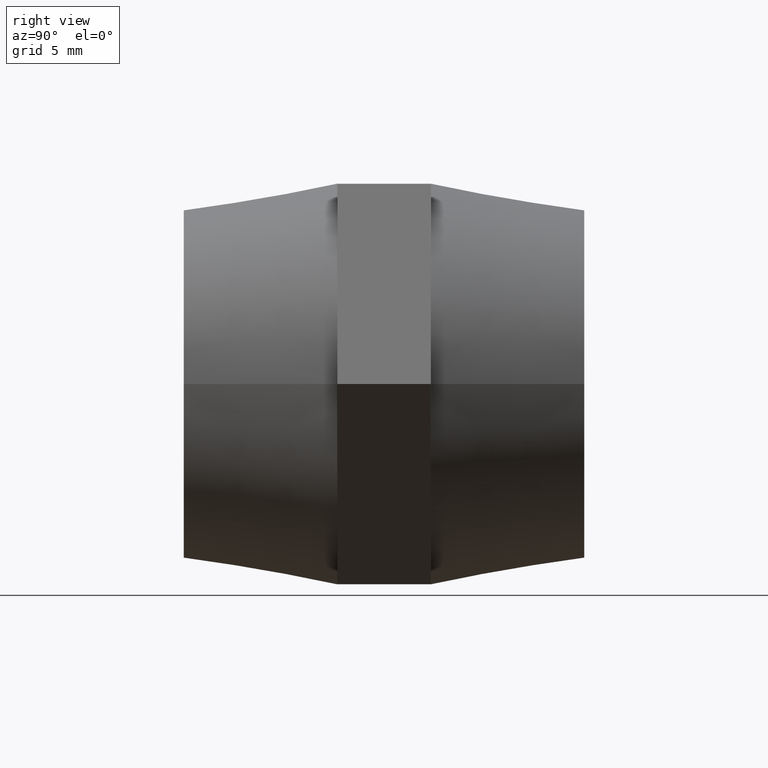
[diagram: clean part render]
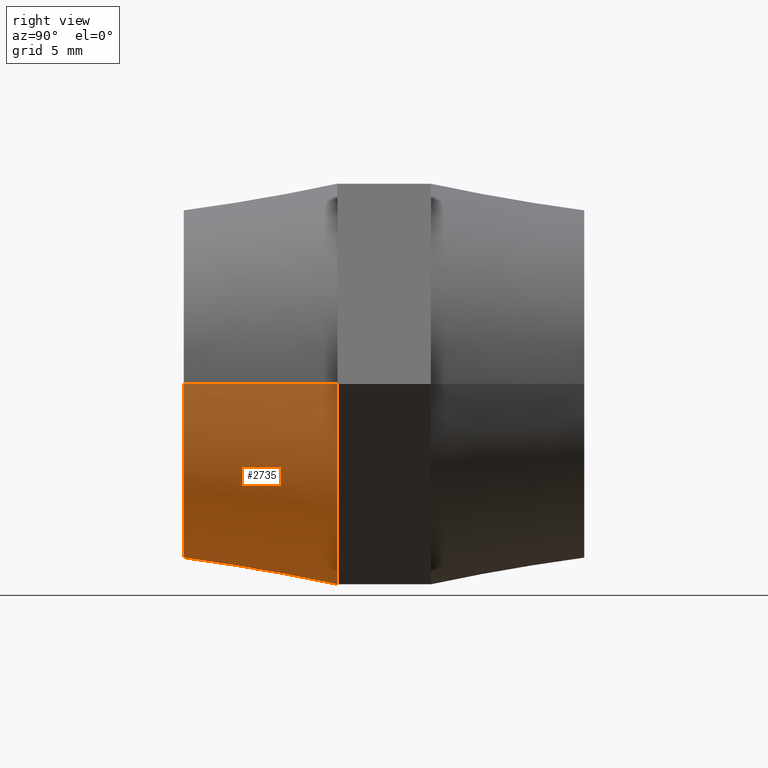
[diagram: same view with one face highlighted and labeled with its STEP entity id]
A machine part, right view. The second image highlights one B-rep face of the part: STEP entity #2735.
In plain terms, the highlighted conical surface has half-angle 9.866 deg.
Its self-contained STEP definition (entity closure, byte-faithful):
#27 = EDGE_CURVE ( 'NONE', #3611, #335, #457, .T. ) ;
#35 = AXIS2_PLACEMENT_3D ( 'NONE', #1617, #2551, #3760 ) ;
#59 = ORIENTED_EDGE ( 'NONE', *, *, #887, .F. ) ;
#103 = VERTEX_POINT ( 'NONE', #2488 ) ;
#136 = ORIENTED_EDGE ( 'NONE', *, *, #1017, .T. ) ;
#239 = CONICAL_SURFACE ( 'NONE', #2372, 15.00000000000000000, 0.1721908145229393800 ) ;
#335 = VERTEX_POINT ( 'NONE', #3043 ) ;
#457 = LINE ( 'NONE', #2420, #2533 ) ;
#572 = CARTESIAN_POINT ( 'NONE',  ( 12.99038105676658000, -3.500000000000000000, -7.500000000000000000 ) ) ;
#658 = DIRECTION ( 'NONE',  ( 0.0000000000000000000, 1.000000000000000000, 0.0000000000000000000 ) ) ;
#693 = CARTESIAN_POINT ( 'NONE',  ( 3.673940397442060000E-015, -15.00000000000000000, 0.0000000000000000000 ) ) ;
#720 = ORIENTED_EDGE ( 'NONE', *, *, #3523, .F. ) ;
#721 = VECTOR ( 'NONE', #2000, 1000.000000000000100 ) ;
#770 = CIRCLE ( 'NONE', #1713, 13.00000000000000000 ) ;
#784 = CARTESIAN_POINT ( 'NONE',  ( -14.99999999999999800, -3.500000000000001800, 0.0000000000000000000 ) ) ;
#833 = ORIENTED_EDGE ( 'NONE', *, *, #1848, .F. ) ;
#874 = DIRECTION ( 'NONE',  ( 0.0000000000000000000, 0.0000000000000000000, 1.000000000000000000 ) ) ;
#887 = EDGE_CURVE ( 'NONE', #335, #3306, #3234, .T. ) ;
#896 = CARTESIAN_POINT ( 'NONE',  ( -12.99999999999999600, -15.00000000000000200, 0.0000000000000000000 ) ) ;
#996 = DIRECTION ( 'NONE',  ( 0.0000000000000000000, 0.0000000000000000000, 1.000000000000000000 ) ) ;
#1001 = AXIS2_PLACEMENT_3D ( 'NONE', #2500, #658, #996 ) ;
#1017 = EDGE_CURVE ( 'NONE', #1861, #1904, #3736, .T. ) ;
#1100 = AXIS2_PLACEMENT_3D ( 'NONE', #3426, #2796, #1323 ) ;
#1121 = ORIENTED_EDGE ( 'NONE', *, *, #1485, .F. ) ;
#1226 = DIRECTION ( 'NONE',  ( 0.1713411747512479400, 0.9852117548196743800, 2.098324212212632000E-017 ) ) ;
#1286 = CIRCLE ( 'NONE', #1100, 15.00000000000000000 ) ;
#1323 = DIRECTION ( 'NONE',  ( 0.0000000000000000000, 0.0000000000000000000, 1.000000000000000000 ) ) ;
#1449 = DIRECTION ( 'NONE',  ( -1.000000000000000000, -1.156482317317871500E-016, 0.0000000000000000000 ) ) ;
#1467 = VERTEX_POINT ( 'NONE', #1557 ) ;
#1470 = EDGE_CURVE ( 'NONE', #3611, #1861, #770, .T. ) ;
#1485 = EDGE_CURVE ( 'NONE', #103, #1904, #1286, .T. ) ;
#1557 = CARTESIAN_POINT ( 'NONE',  ( 2.265596578422605000E-015, -3.500000000000000000, -15.00000000000000000 ) ) ;
#1617 = CARTESIAN_POINT ( 'NONE',  ( 2.265596578422605000E-015, -3.500000000000000000, 3.194730780384400500E-016 ) ) ;
#1713 = AXIS2_PLACEMENT_3D ( 'NONE', #693, #1910, #3155 ) ;
#1837 = FACE_OUTER_BOUND ( 'NONE', #3066, .T. ) ;
#1848 = EDGE_CURVE ( 'NONE', #3306, #1467, #1849, .T. ) ;
#1849 = CIRCLE ( 'NONE', #2115, 15.00000000000000000 ) ;
#1861 = VERTEX_POINT ( 'NONE', #896 ) ;
#1904 = VERTEX_POINT ( 'NONE', #2142 ) ;
#1910 = DIRECTION ( 'NONE',  ( -1.224646799147352000E-016, 1.000000000000000000, 0.0000000000000000000 ) ) ;
#2000 = DIRECTION ( 'NONE',  ( -0.1713411747512481600, 0.9852117548196743800, 0.0000000000000000000 ) ) ;
#2115 = AXIS2_PLACEMENT_3D ( 'NONE', #2422, #2986, #874 ) ;
#2142 = CARTESIAN_POINT ( 'NONE',  ( -14.99999999999999800, -3.500000000000000000, 0.0000000000000000000 ) ) ;
#2172 = ORIENTED_EDGE ( 'NONE', *, *, #1470, .T. ) ;
#2372 = AXIS2_PLACEMENT_3D ( 'NONE', #3833, #2625, #1449 ) ;
#2420 = CARTESIAN_POINT ( 'NONE',  ( 15.00000000000000200, -3.499999999999998200, 1.836970198721029600E-015 ) ) ;
#2422 = CARTESIAN_POINT ( 'NONE',  ( 2.265596578422605000E-015, -3.500000000000000000, 3.194730780384400500E-016 ) ) ;
#2488 = CARTESIAN_POINT ( 'NONE',  ( -12.99038105676658000, -3.500000000000000000, -7.500000000000000000 ) ) ;
#2500 = CARTESIAN_POINT ( 'NONE',  ( 2.265596578422605000E-015, -3.500000000000000000, 3.194730780384400500E-016 ) ) ;
#2533 = VECTOR ( 'NONE', #1226, 1000.000000000000100 ) ;
#2551 = DIRECTION ( 'NONE',  ( 0.0000000000000000000, 1.000000000000000000, 0.0000000000000000000 ) ) ;
#2625 = DIRECTION ( 'NONE',  ( -1.224646799147352000E-016, 1.000000000000000000, 0.0000000000000000000 ) ) ;
#2633 = ORIENTED_EDGE ( 'NONE', *, *, #27, .F. ) ;
#2735 = ADVANCED_FACE ( 'NONE', ( #1837 ), #239, .T. ) ;
#2796 = DIRECTION ( 'NONE',  ( 0.0000000000000000000, 1.000000000000000000, 0.0000000000000000000 ) ) ;
#2986 = DIRECTION ( 'NONE',  ( 0.0000000000000000000, 1.000000000000000000, 0.0000000000000000000 ) ) ;
#3043 = CARTESIAN_POINT ( 'NONE',  ( 15.00000000000000200, -3.500000000000000000, 1.836970198721029600E-015 ) ) ;
#3066 = EDGE_LOOP ( 'NONE', ( #2633, #2172, #136, #1121, #720, #833, #59 ) ) ;
#3155 = DIRECTION ( 'NONE',  ( -1.000000000000000000, -1.334402673828313100E-016, 0.0000000000000000000 ) ) ;
#3234 = CIRCLE ( 'NONE', #35, 15.00000000000000000 ) ;
#3306 = VERTEX_POINT ( 'NONE', #572 ) ;
#3426 = CARTESIAN_POINT ( 'NONE',  ( 2.265596578422605000E-015, -3.500000000000000000, 3.194730780384400500E-016 ) ) ;
#3456 = CARTESIAN_POINT ( 'NONE',  ( 13.00000000000000500, -14.99999999999999800, 1.714505518806294600E-015 ) ) ;
#3523 = EDGE_CURVE ( 'NONE', #1467, #103, #3672, .T. ) ;
#3611 = VERTEX_POINT ( 'NONE', #3456 ) ;
#3672 = CIRCLE ( 'NONE', #1001, 15.00000000000000000 ) ;
#3736 = LINE ( 'NONE', #784, #721 ) ;
#3760 = DIRECTION ( 'NONE',  ( 0.0000000000000000000, 0.0000000000000000000, 1.000000000000000000 ) ) ;
#3833 = CARTESIAN_POINT ( 'NONE',  ( 2.265596578422605000E-015, -3.500000000000000000, 0.0000000000000000000 ) ) ;